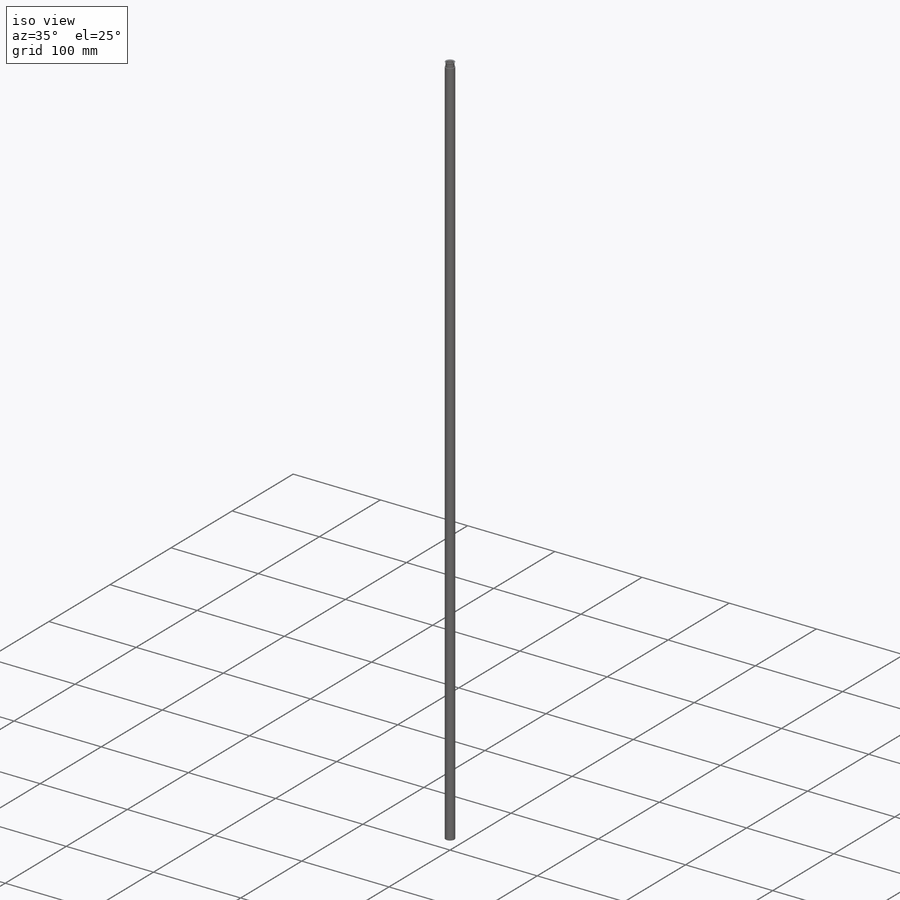
[diagram: iso view]
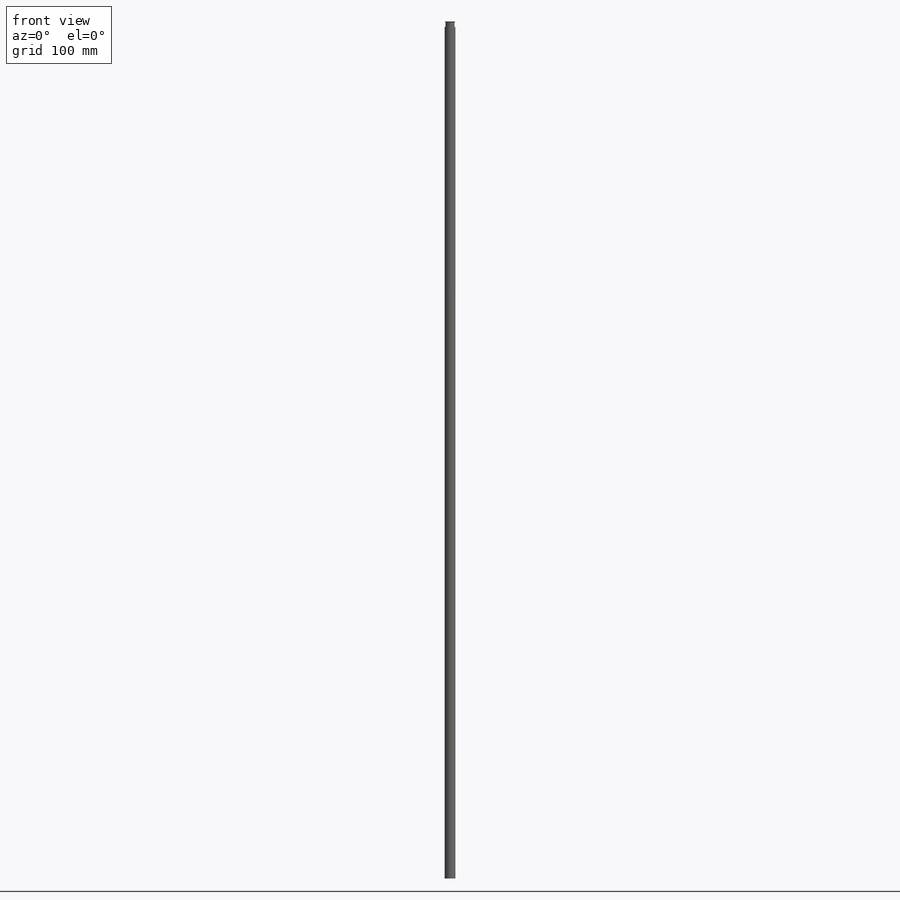
[diagram: front view]
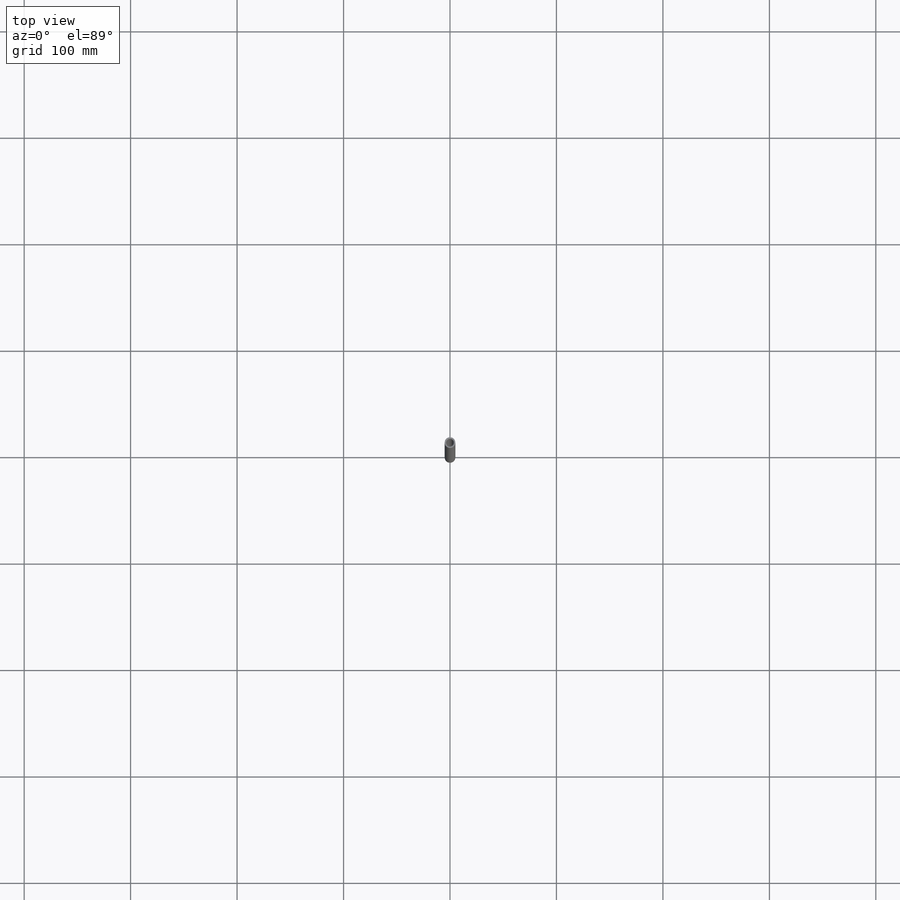
[diagram: top view]
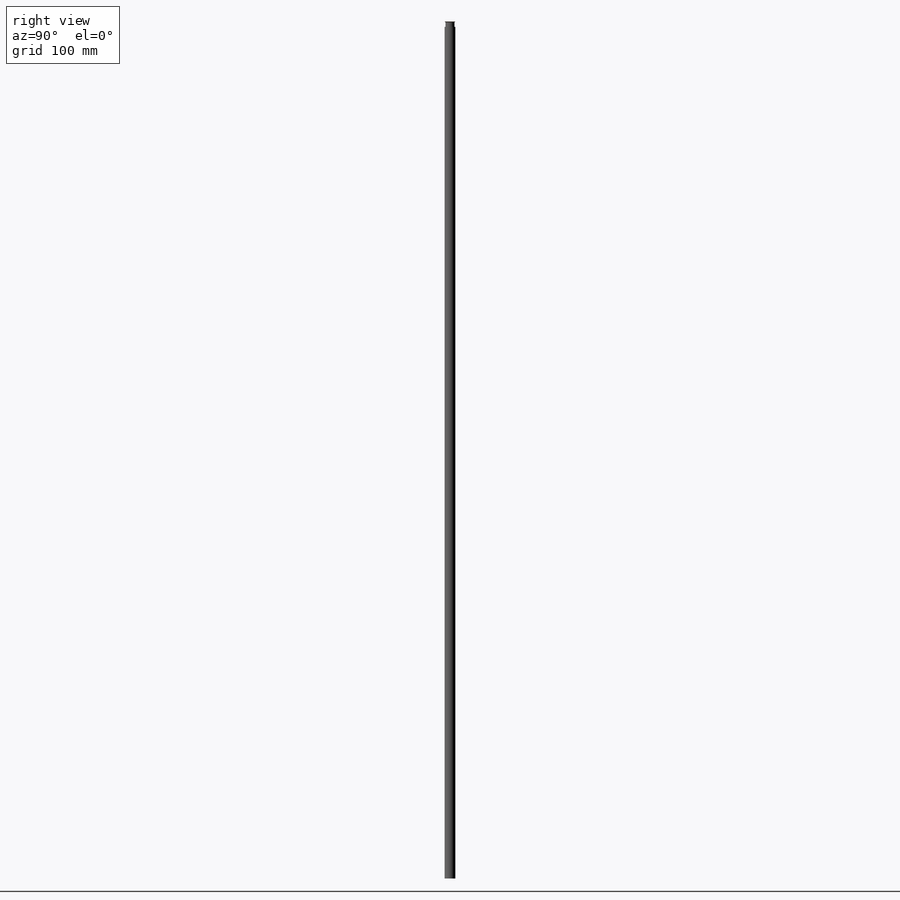
[diagram: right view]
SOLIDWORKS PART (.sldprt)
format: sldprt  version: not decoded by parser v0  size: 173,056 bytes
history: native  units: mm
features: sketch x6, plane x3, cut_extrude x3, extrude x2, material x1, chamfer x1, revolve x1 (+10 scaffold rows collapsed)
feature tree (27):
  scaffold x10  (default folders/planes/origin — collapsed)
  material  "Material <sin especificar>"
  plane  "Alzado"
  plane  "Planta"
  plane  "Vista lateral"
  sketch  "Croquis1"  dims[10=10.0mm]
  extrude  "Saliente-Extruir1"  Depth=800mm
  sketch  "Croquis2"  dims[D1=7.0mm D2=10.0mm]
  cut_extrude  "Cortar-Extruir1"  [1 undecoded]
  sketch  "Croquis3"  dims[D1=12.0mm]
  extrude  "Saliente-Extruir2"  Depth=1mm
  sketch  "Croquis4"  dims[D1=7.0mm]
  cut_extrude  "Cortar-Extruir3"  Depth=1mm
  chamfer  "Chaflán1"  Distance=1mm Angle=45deg
  sketch  "Croquis5"
  cut_extrude  "Cortar-Extruir4"  Depth=10mm
  sketch  "Croquis6"  dims[D1=5.0mm D2=4.25mm D3=4.26mm D4=10.0mm]
  revolve  "Revolución1"  Angle=360deg
decode coverage: 11 of 13 modeling features carry decoded parameters
note: 1 parameter value undecoded
note: suppression state not decoded; provenance and decode notes live in map.json
